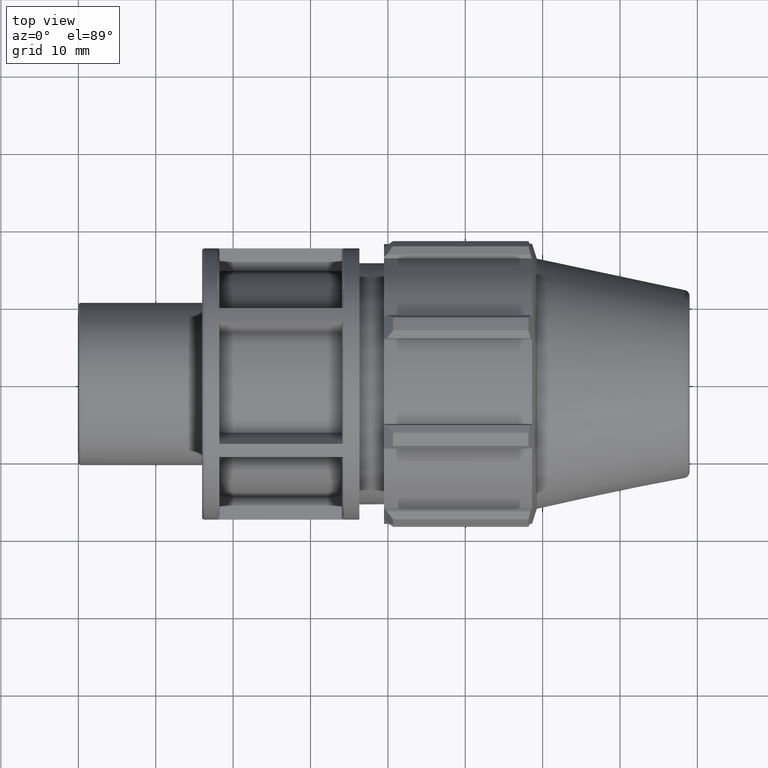
[diagram: clean part render]
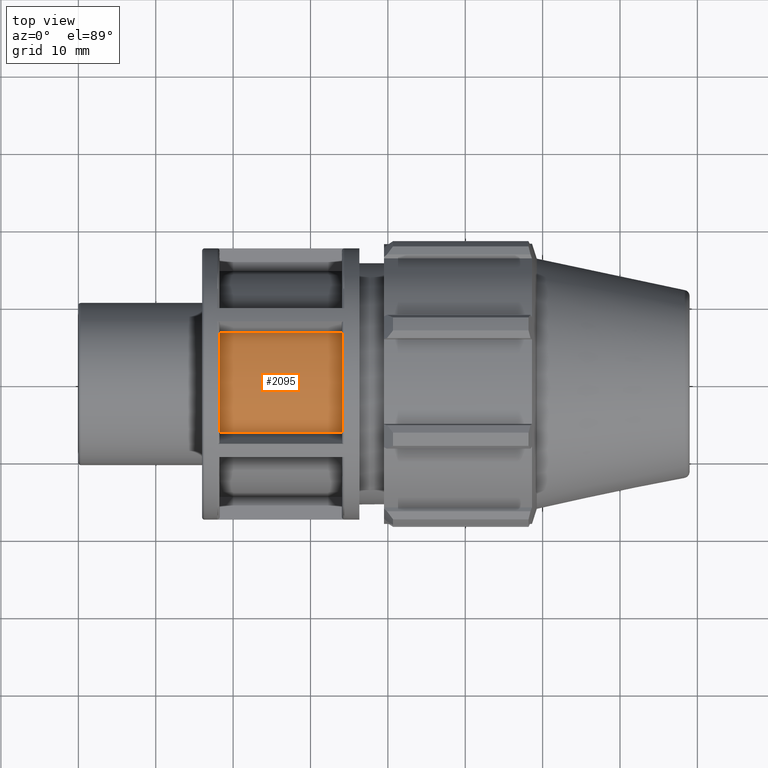
[diagram: same view with one face highlighted and labeled with its STEP entity id]
A machine part, top view. The second image highlights one B-rep face of the part: STEP entity #2095.
In plain terms, the highlighted cylindrical surface (partial cylindrical patch) has radius 14.625 mm, axis along (1, 0, 0).
Its self-contained STEP definition (entity closure, byte-faithful):
#96=LINE('',#3376,#240);
#99=LINE('',#3381,#243);
#240=VECTOR('',#2563,15.8);
#243=VECTOR('',#2568,15.8);
#373=CYLINDRICAL_SURFACE('',#2256,14.625);
#525=FACE_OUTER_BOUND('',#654,.T.);
#654=EDGE_LOOP('',(#1526,#1527,#1528,#1529));
#777=CIRCLE('',#2227,14.625);
#782=CIRCLE('',#2248,14.625);
#898=VERTEX_POINT('',#3307);
#899=VERTEX_POINT('',#3309);
#912=VERTEX_POINT('',#3375);
#913=VERTEX_POINT('',#3379);
#1116=EDGE_CURVE('',#898,#899,#777,.T.);
#1139=EDGE_CURVE('',#912,#899,#96,.T.);
#1142=EDGE_CURVE('',#898,#913,#99,.T.);
#1147=EDGE_CURVE('',#913,#912,#782,.T.);
#1526=ORIENTED_EDGE('',*,*,#1139,.T.);
#1527=ORIENTED_EDGE('',*,*,#1116,.F.);
#1528=ORIENTED_EDGE('',*,*,#1142,.T.);
#1529=ORIENTED_EDGE('',*,*,#1147,.T.);
#2095=ADVANCED_FACE('',(#525),#373,.T.);
#2227=AXIS2_PLACEMENT_3D('',#3310,#2514,#2515);
#2248=AXIS2_PLACEMENT_3D('',#3391,#2580,#2581);
#2256=AXIS2_PLACEMENT_3D('',#3400,#2597,#2598);
#2514=DIRECTION('center_axis',(1.,0.,0.));
#2515=DIRECTION('ref_axis',(0.,0.,-1.));
#2563=DIRECTION('',(1.,0.,0.));
#2568=DIRECTION('',(-1.,0.,0.));
#2580=DIRECTION('center_axis',(1.,0.,0.));
#2581=DIRECTION('ref_axis',(0.,0.,-1.));
#2597=DIRECTION('center_axis',(1.,0.,0.));
#2598=DIRECTION('ref_axis',(0.,1.,0.));
#3307=CARTESIAN_POINT('',(34.0571428571429,6.36911689146623,13.1652943386329));
#3309=CARTESIAN_POINT('',(34.0571428571429,-6.53430714390446,13.0840916822345));
#3310=CARTESIAN_POINT('Origin',(34.0571428571429,0.,0.));
#3375=CARTESIAN_POINT('',(18.2571428571429,-6.53430714390446,13.0840916822345));
#3376=CARTESIAN_POINT('',(26.1571428571429,-6.53430714390446,13.0840916822345));
#3379=CARTESIAN_POINT('',(18.2571428571429,6.36911689146622,13.1652943386329));
#3381=CARTESIAN_POINT('',(26.1571428571429,6.36911689146623,13.1652943386329));
#3391=CARTESIAN_POINT('Origin',(18.2571428571429,0.,0.));
#3400=CARTESIAN_POINT('Origin',(26.1571428571429,0.,0.));